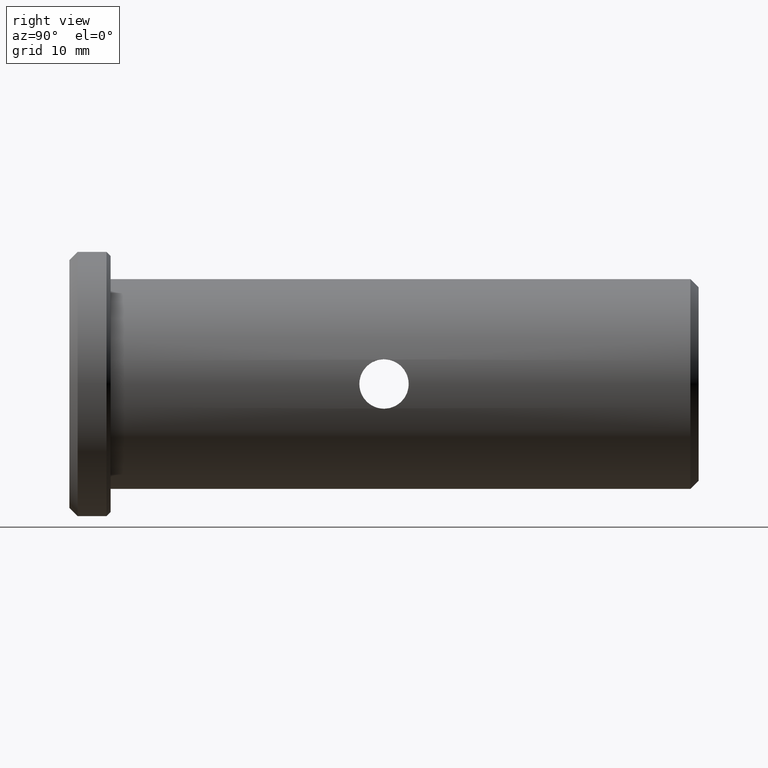
[diagram: clean part render]
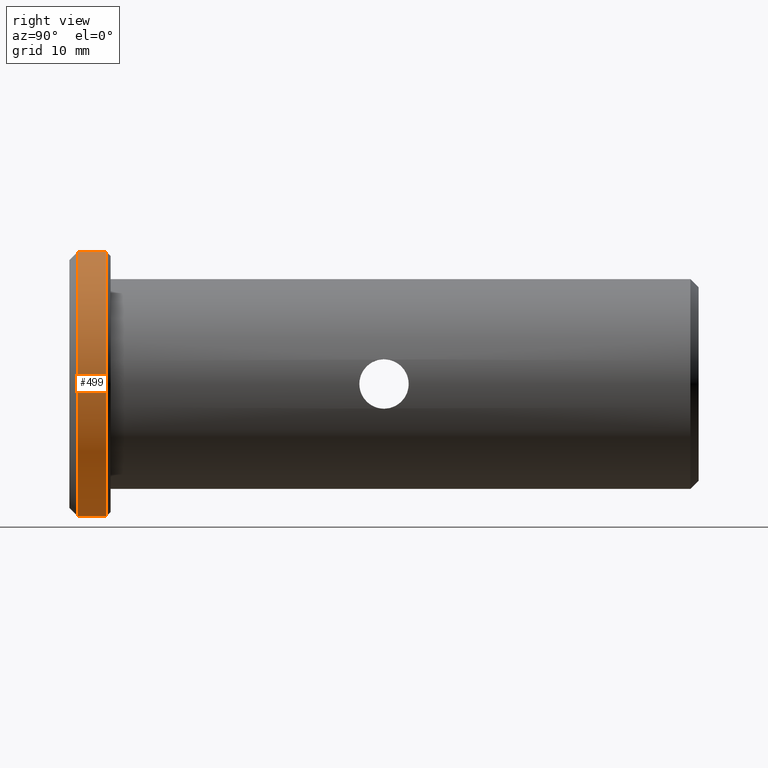
[diagram: same view with one face highlighted and labeled with its STEP entity id]
A machine part, right view. The second image highlights one B-rep face of the part: STEP entity #499.
In plain terms, the highlighted cylindrical surface (partial cylindrical patch) has radius 16 mm, axis along (0, 1, 0).
Its self-contained STEP definition (entity closure, byte-faithful):
#4 = CARTESIAN_POINT ( 'NONE',  ( 0.0000000000000000000, -33.60000000000000100, 0.0000000000000000000 ) ) ;
#21 = CARTESIAN_POINT ( 'NONE',  ( 1.959434878635766300E-015, -37.09999999999999400, -16.00000000000000700 ) ) ;
#70 = CIRCLE ( 'NONE', #525, 16.00000000000000700 ) ;
#129 = ORIENTED_EDGE ( 'NONE', *, *, #807, .F. ) ;
#149 = LINE ( 'NONE', #275, #265 ) ;
#159 = VERTEX_POINT ( 'NONE', #795 ) ;
#160 = DIRECTION ( 'NONE',  ( 0.0000000000000000000, 1.000000000000000000, 0.0000000000000000000 ) ) ;
#176 = CIRCLE ( 'NONE', #732, 16.00000000000000700 ) ;
#214 = VECTOR ( 'NONE', #328, 1000.000000000000000 ) ;
#218 = CARTESIAN_POINT ( 'NONE',  ( 1.959434878635766300E-015, -33.60000000000000100, -16.00000000000000700 ) ) ;
#219 = EDGE_CURVE ( 'NONE', #375, #159, #149, .T. ) ;
#244 = LINE ( 'NONE', #330, #214 ) ;
#265 = VECTOR ( 'NONE', #160, 1000.000000000000000 ) ;
#275 = CARTESIAN_POINT ( 'NONE',  ( 0.0000000000000000000, 26.50383876709786800, 16.00000000000000700 ) ) ;
#308 = EDGE_LOOP ( 'NONE', ( #384, #340, #129, #478 ) ) ;
#328 = DIRECTION ( 'NONE',  ( 0.0000000000000000000, 1.000000000000000000, 0.0000000000000000000 ) ) ;
#330 = CARTESIAN_POINT ( 'NONE',  ( 1.959434878635766300E-015, 26.50383876709786800, -16.00000000000000700 ) ) ;
#340 = ORIENTED_EDGE ( 'NONE', *, *, #728, .T. ) ;
#368 = VERTEX_POINT ( 'NONE', #218 ) ;
#375 = VERTEX_POINT ( 'NONE', #888 ) ;
#384 = ORIENTED_EDGE ( 'NONE', *, *, #902, .T. ) ;
#402 = DIRECTION ( 'NONE',  ( 0.0000000000000000000, 0.0000000000000000000, -1.000000000000000000 ) ) ;
#478 = ORIENTED_EDGE ( 'NONE', *, *, #219, .F. ) ;
#482 = VERTEX_POINT ( 'NONE', #21 ) ;
#499 = ADVANCED_FACE ( 'NONE', ( #606 ), #620, .T. ) ;
#500 = DIRECTION ( 'NONE',  ( 0.0000000000000000000, 1.000000000000000000, 0.0000000000000000000 ) ) ;
#525 = AXIS2_PLACEMENT_3D ( 'NONE', #998, #872, #878 ) ;
#606 = FACE_OUTER_BOUND ( 'NONE', #308, .T. ) ;
#620 = CYLINDRICAL_SURFACE ( 'NONE', #1021, 16.00000000000000700 ) ;
#659 = DIRECTION ( 'NONE',  ( 0.0000000000000000000, 0.0000000000000000000, 1.000000000000000000 ) ) ;
#728 = EDGE_CURVE ( 'NONE', #482, #368, #244, .T. ) ;
#732 = AXIS2_PLACEMENT_3D ( 'NONE', #4, #891, #402 ) ;
#750 = CARTESIAN_POINT ( 'NONE',  ( 0.0000000000000000000, 26.50383876709786800, 0.0000000000000000000 ) ) ;
#795 = CARTESIAN_POINT ( 'NONE',  ( 1.959434878635766300E-015, -33.60000000000000100, 16.00000000000000700 ) ) ;
#807 = EDGE_CURVE ( 'NONE', #159, #368, #176, .T. ) ;
#872 = DIRECTION ( 'NONE',  ( 0.0000000000000000000, 1.000000000000000000, 0.0000000000000000000 ) ) ;
#878 = DIRECTION ( 'NONE',  ( 0.0000000000000000000, 0.0000000000000000000, 1.000000000000000000 ) ) ;
#888 = CARTESIAN_POINT ( 'NONE',  ( 0.0000000000000000000, -37.09999999999999400, 16.00000000000000700 ) ) ;
#891 = DIRECTION ( 'NONE',  ( -0.0000000000000000000, 1.000000000000000000, -0.0000000000000000000 ) ) ;
#902 = EDGE_CURVE ( 'NONE', #375, #482, #70, .T. ) ;
#998 = CARTESIAN_POINT ( 'NONE',  ( 0.0000000000000000000, -37.09999999999999400, 0.0000000000000000000 ) ) ;
#1021 = AXIS2_PLACEMENT_3D ( 'NONE', #750, #500, #659 ) ;